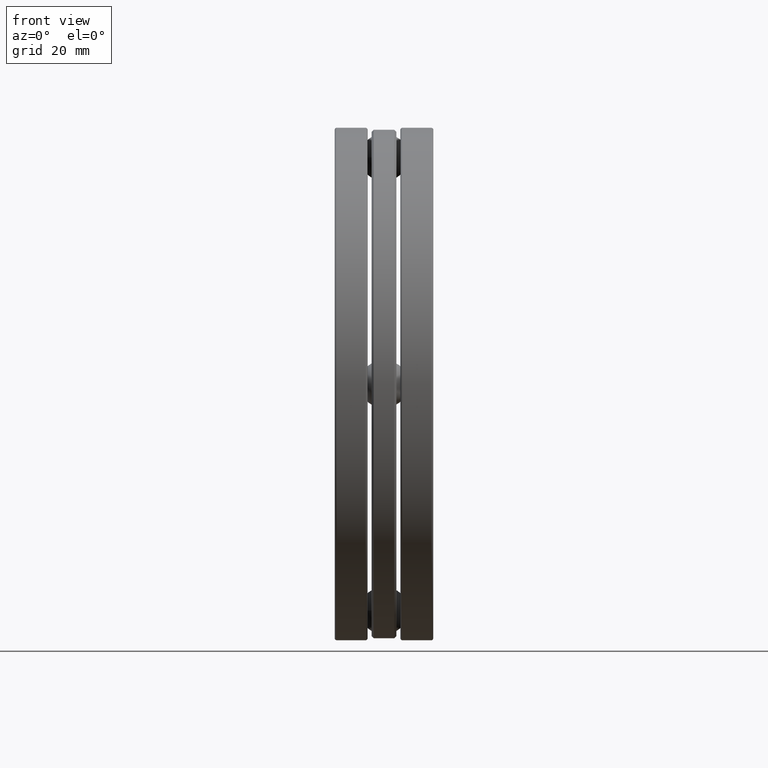
[diagram: clean part render]
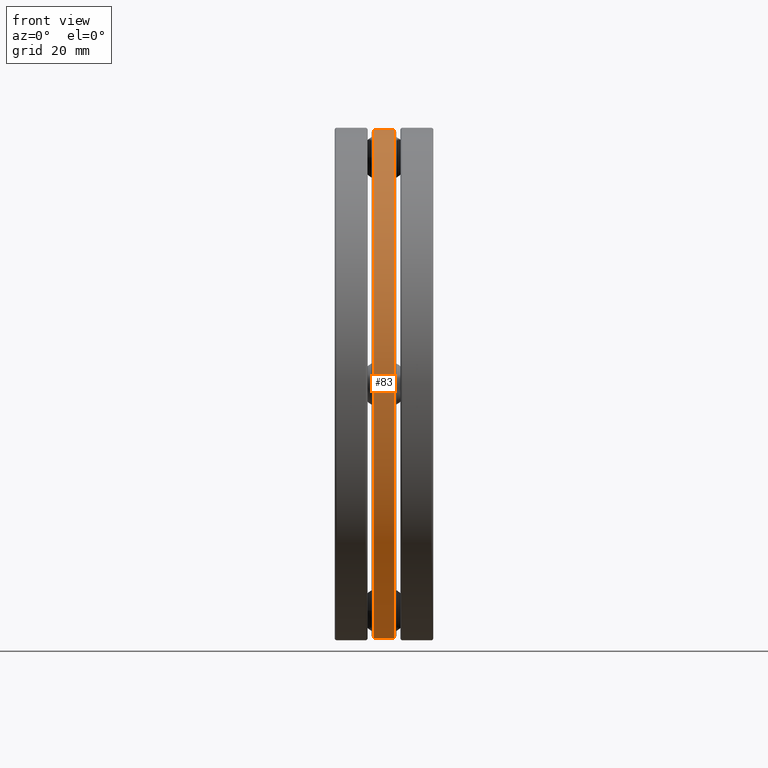
[diagram: same view with one face highlighted and labeled with its STEP entity id]
A machine part, front view. The second image highlights one B-rep face of the part: STEP entity #83.
In plain terms, the highlighted cylindrical surface (bore or boss wall) has radius 64.4906 mm, axis along (-1, -0, -0).
Its self-contained STEP definition (entity closure, byte-faithful):
#28 = DIRECTION ( 'NONE',  ( 0.0000000000000000000, 0.0000000000000000000, 1.000000000000000000 ) ) ;
#37 = CYLINDRICAL_SURFACE ( 'NONE', #366, 2.539000000000001000 ) ;
#58 = CARTESIAN_POINT ( 'NONE',  ( 0.1029999999999999400, 0.0000000000000000000, 2.539000000000001000 ) ) ;
#83 = ADVANCED_FACE ( 'NONE', ( #429, #472 ), #37, .T. ) ;
#97 = EDGE_CURVE ( 'NONE', #746, #746, #203, .T. ) ;
#203 = CIRCLE ( 'NONE', #731, 2.539000000000001000 ) ;
#215 = DIRECTION ( 'NONE',  ( 0.0000000000000000000, 0.0000000000000000000, 1.000000000000000000 ) ) ;
#253 = CIRCLE ( 'NONE', #724, 2.539000000000001000 ) ;
#257 = EDGE_LOOP ( 'NONE', ( #474 ) ) ;
#332 = EDGE_CURVE ( 'NONE', #680, #680, #253, .T. ) ;
#336 = CARTESIAN_POINT ( 'NONE',  ( 0.1029999999999999400, 0.0000000000000000000, 0.0000000000000000000 ) ) ;
#366 = AXIS2_PLACEMENT_3D ( 'NONE', #553, #626, #502 ) ;
#388 = ORIENTED_EDGE ( 'NONE', *, *, #97, .F. ) ;
#399 = DIRECTION ( 'NONE',  ( -1.000000000000000000, -0.0000000000000000000, -0.0000000000000000000 ) ) ;
#422 = CARTESIAN_POINT ( 'NONE',  ( -0.1030000000000000400, 0.0000000000000000000, 2.539000000000001000 ) ) ;
#429 = FACE_OUTER_BOUND ( 'NONE', #257, .T. ) ;
#453 = DIRECTION ( 'NONE',  ( -1.000000000000000000, -0.0000000000000000000, -0.0000000000000000000 ) ) ;
#472 = FACE_OUTER_BOUND ( 'NONE', #485, .T. ) ;
#474 = ORIENTED_EDGE ( 'NONE', *, *, #332, .T. ) ;
#485 = EDGE_LOOP ( 'NONE', ( #388 ) ) ;
#502 = DIRECTION ( 'NONE',  ( 0.0000000000000000000, 0.0000000000000000000, 1.000000000000000000 ) ) ;
#553 = CARTESIAN_POINT ( 'NONE',  ( 0.0000000000000000000, 0.0000000000000000000, 0.0000000000000000000 ) ) ;
#626 = DIRECTION ( 'NONE',  ( -1.000000000000000000, -0.0000000000000000000, -0.0000000000000000000 ) ) ;
#680 = VERTEX_POINT ( 'NONE', #58 ) ;
#718 = CARTESIAN_POINT ( 'NONE',  ( -0.1030000000000000400, 0.0000000000000000000, 0.0000000000000000000 ) ) ;
#724 = AXIS2_PLACEMENT_3D ( 'NONE', #336, #453, #28 ) ;
#731 = AXIS2_PLACEMENT_3D ( 'NONE', #718, #399, #215 ) ;
#746 = VERTEX_POINT ( 'NONE', #422 ) ;